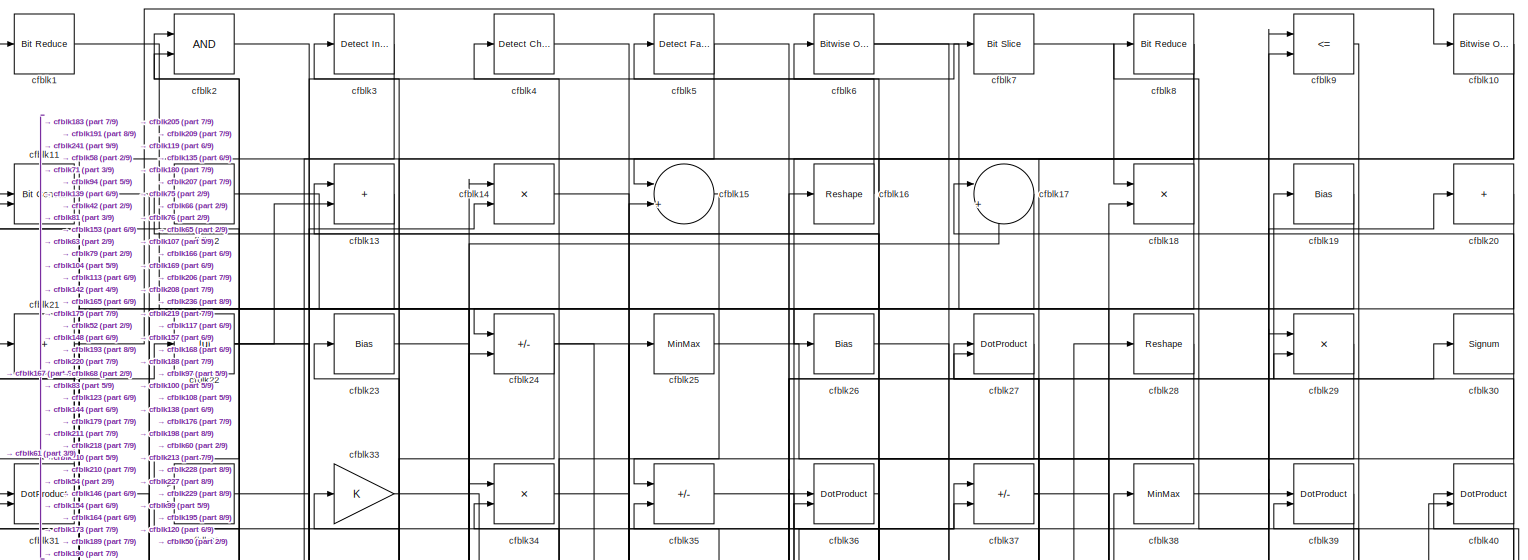
[diagram: root canvas - part 1/9, full width, top band]
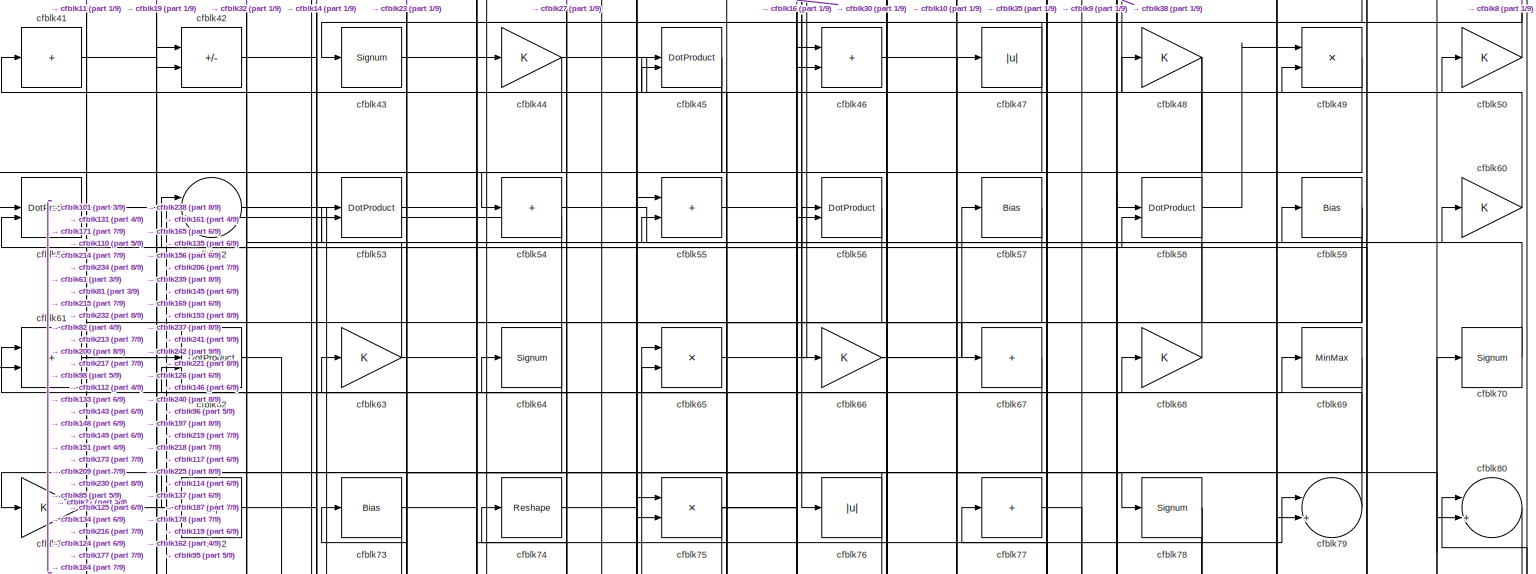
[diagram: root canvas - part 2/9, full width, top band]
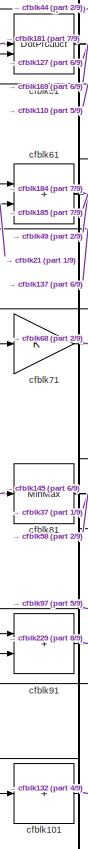
[diagram: root canvas - part 3/9, top left region]
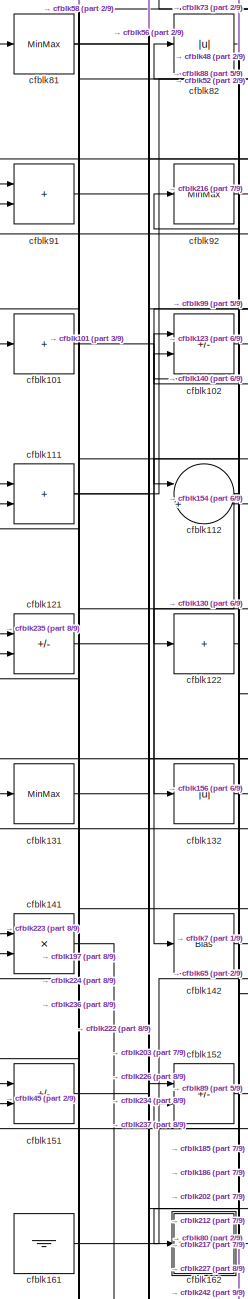
[diagram: root canvas - part 4/9, middle left region]
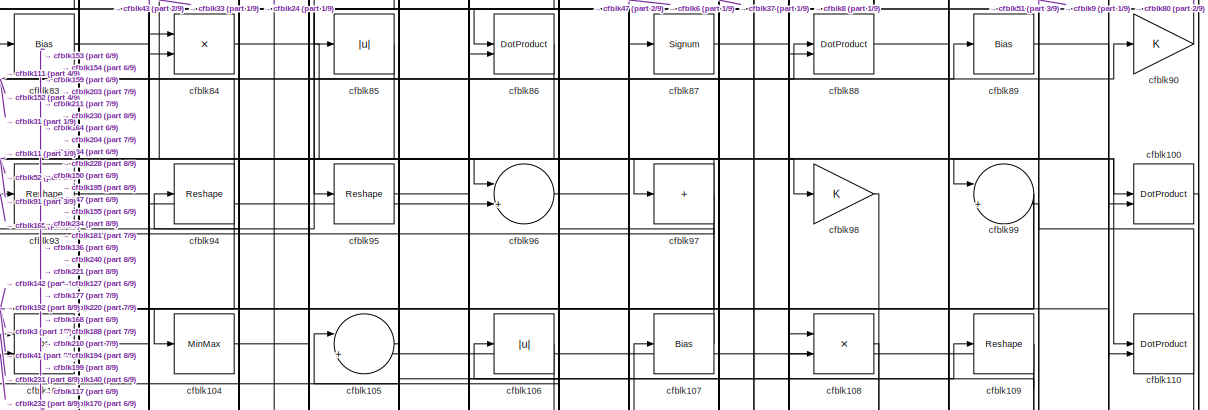
[diagram: root canvas - part 5/9, full width, middle band]
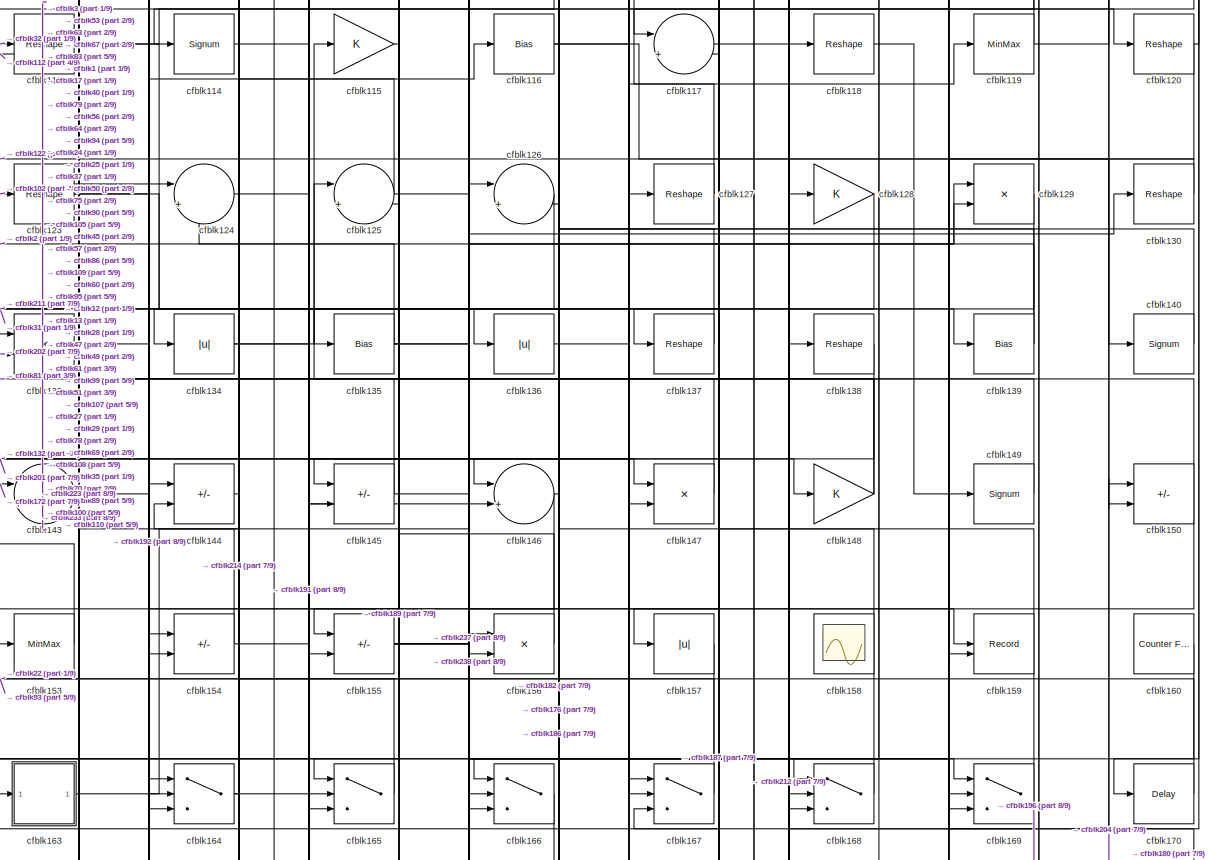
[diagram: root canvas - part 6/9, full width, middle band]
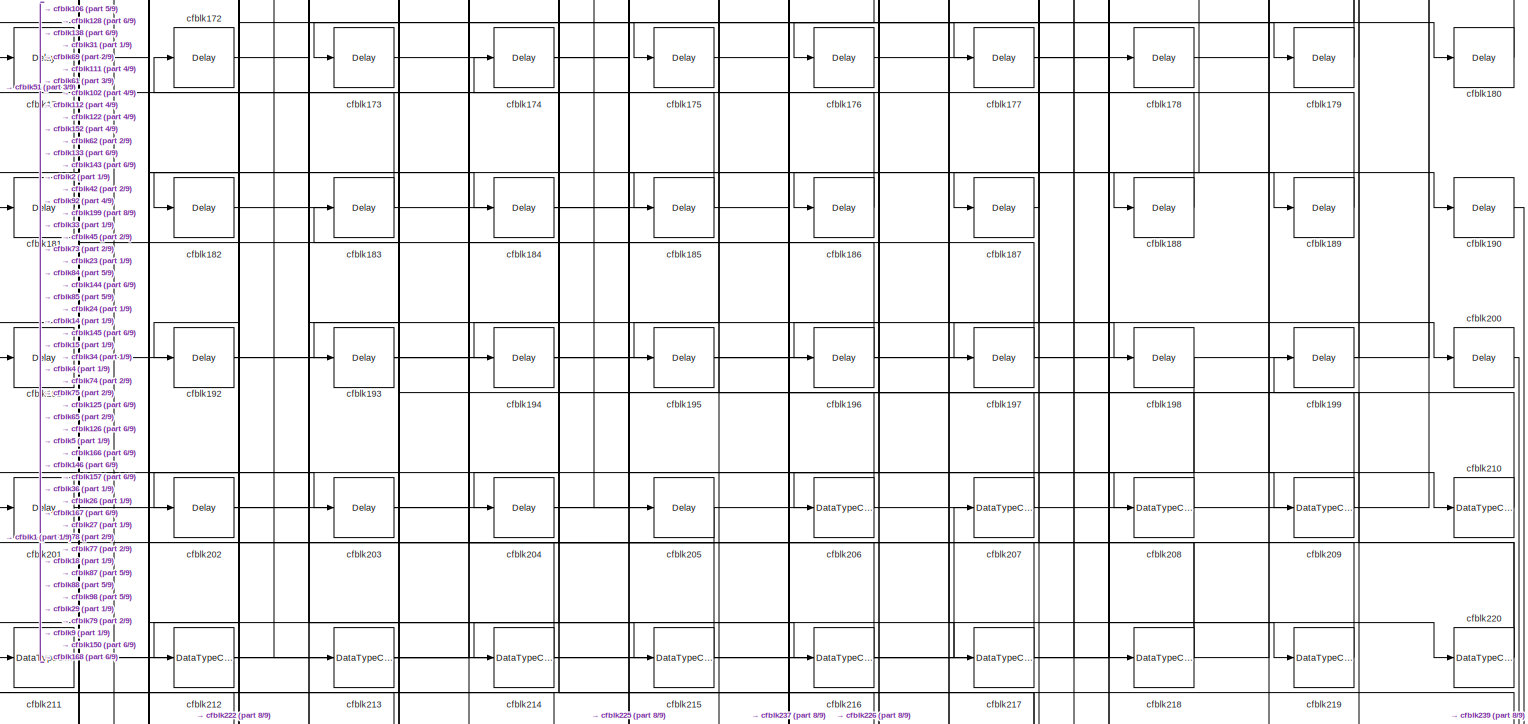
[diagram: root canvas - part 7/9, full width, bottom band]
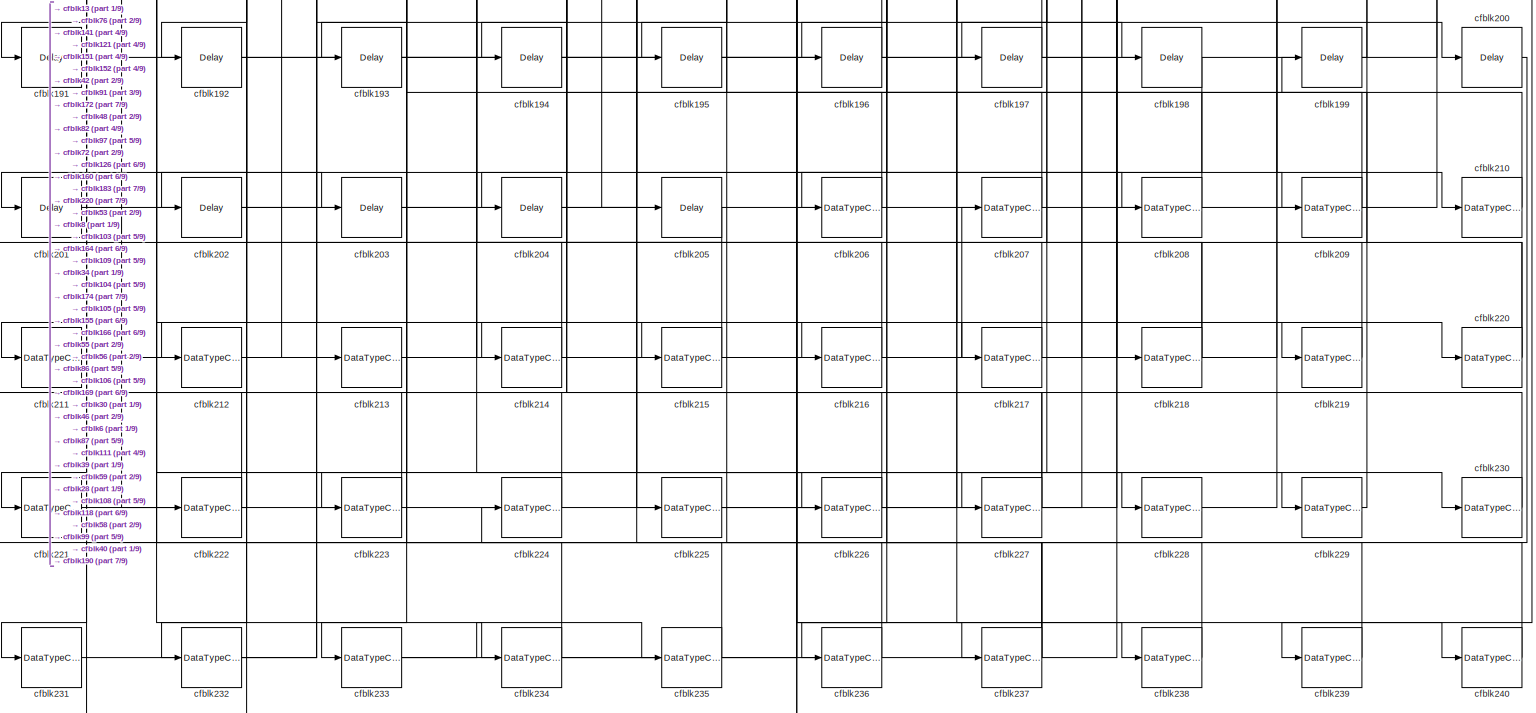
[diagram: root canvas - part 8/9, full width, bottom band]
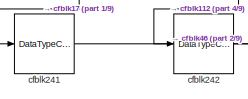
[diagram: root canvas - part 9/9, bottom left region]
MODEL slx_e442b698175f
KIND model
CONFIG AbsTol = auto
CONFIG EnableMultiTasking = off
CONFIG FixedStep = auto
CONFIG MaxStep = auto
CONFIG MinStep = auto
CONFIG RelTol = 1e-3
CONFIG SampleTimeConstraint = Unconstrained
CONFIG SolverName = VariableStepAuto
CONFIG StartTime = 0.0
CONFIG StopTime = 10.0
BLOCK [Reference] cfblk1  REF=hdlsllib/Logic and Bit
Operations/Bit Reduce
  SourceBlock = hdlsllib/Logic and Bit\nOperations/Bit Reduce
  SourceType = Bit Reduce
BLOCK [Reference] cfblk10  REF=simulink/Logic and Bit
Operations/Bitwise
Operator
  LibrarySourceBlock = hdlsllib/Logic and Bit\nOperations/Bitwise\nOperator
  SourceBlock = simulink/Logic and Bit\nOperations/Bitwise\nOperator
  SourceType = Bitwise Operator
BLOCK [DotProduct] cfblk100
  OutDataTypeStr = Inherit: Inherit via internal rule
BLOCK [Sum] cfblk101
  IconShape = rectangular
  Inputs = +
BLOCK [Sum] cfblk102
  IconShape = rectangular
  Inputs = +-
BLOCK [Product] cfblk103
  Inputs = */
  RndMeth = Zero
  SaturateOnIntegerOverflow = on
BLOCK [MinMax] cfblk104
BLOCK [Sum] cfblk105
  Inputs = |++
BLOCK [Abs] cfblk106
  SaturateOnIntegerOverflow = off
BLOCK [Bias] cfblk107
  Bias = 0.0
  SaturateOnIntegerOverflow = off
BLOCK [Product] cfblk108
  Inputs = */
  RndMeth = Zero
  SaturateOnIntegerOverflow = on
BLOCK [Reshape] cfblk109
BLOCK [Reference] cfblk11  REF=hdlsllib/Logic and Bit
Operations/Bit Concat
  SourceBlock = hdlsllib/Logic and Bit\nOperations/Bit Concat
  SourceType = Bit Concat
BLOCK [DotProduct] cfblk110
  OutDataTypeStr = Inherit: Inherit via internal rule
BLOCK [Sum] cfblk111
  IconShape = rectangular
BLOCK [Sum] cfblk112
  Inputs = |++
BLOCK [Reshape] cfblk113
BLOCK [Signum] cfblk114
BLOCK [Gain] cfblk115
BLOCK [Bias] cfblk116
  Bias = 0.0
  SaturateOnIntegerOverflow = off
BLOCK [Sum] cfblk117
  Inputs = |++
BLOCK [Reshape] cfblk118
BLOCK [MinMax] cfblk119
BLOCK [Sum] cfblk12
  IconShape = rectangular
  Inputs = +
BLOCK [Reshape] cfblk120
BLOCK [Sum] cfblk121
  IconShape = rectangular
  Inputs = +-
BLOCK [Sum] cfblk122
  IconShape = rectangular
  Inputs = +
BLOCK [Reshape] cfblk123
BLOCK [Sum] cfblk124
  Inputs = |++
BLOCK [Sum] cfblk125
  Inputs = |++
BLOCK [Sum] cfblk126
  Inputs = |++
BLOCK [Reshape] cfblk127
BLOCK [Gain] cfblk128
BLOCK [Product] cfblk129
  Inputs = */
  RndMeth = Zero
  SaturateOnIntegerOverflow = on
BLOCK [Sum] cfblk13
  IconShape = rectangular
BLOCK [Reshape] cfblk130
BLOCK [MinMax] cfblk131
BLOCK [Abs] cfblk132
  SaturateOnIntegerOverflow = off
BLOCK [Product] cfblk133
  Inputs = */
  RndMeth = Zero
  SaturateOnIntegerOverflow = on
BLOCK [Abs] cfblk134
  SaturateOnIntegerOverflow = off
BLOCK [Bias] cfblk135
  Bias = 0.0
  SaturateOnIntegerOverflow = off
BLOCK [Abs] cfblk136
  SaturateOnIntegerOverflow = off
BLOCK [Reshape] cfblk137
BLOCK [Reshape] cfblk138
BLOCK [Bias] cfblk139
  Bias = 0.0
  SaturateOnIntegerOverflow = off
BLOCK [Product] cfblk14
  Inputs = */
  RndMeth = Zero
  SaturateOnIntegerOverflow = on
BLOCK [Signum] cfblk140
BLOCK [Product] cfblk141
  Inputs = */
  RndMeth = Zero
  SaturateOnIntegerOverflow = on
BLOCK [Bias] cfblk142
  Bias = 0.0
  SaturateOnIntegerOverflow = off
BLOCK [Sum] cfblk143
  Inputs = |++
BLOCK [Sum] cfblk144
  IconShape = rectangular
  Inputs = +-
BLOCK [Sum] cfblk145
  IconShape = rectangular
  Inputs = +-
BLOCK [Sum] cfblk146
  Inputs = |++
BLOCK [Product] cfblk147
  Inputs = */
  RndMeth = Zero
  SaturateOnIntegerOverflow = on
BLOCK [Gain] cfblk148
BLOCK [Signum] cfblk149
BLOCK [Sum] cfblk15
  Inputs = |++
BLOCK [Sum] cfblk150
  IconShape = rectangular
  Inputs = +-
BLOCK [Sum] cfblk151
  IconShape = rectangular
  Inputs = +-
BLOCK [Sum] cfblk152
  IconShape = rectangular
  Inputs = +-
BLOCK [MinMax] cfblk153
BLOCK [Sum] cfblk154
  IconShape = rectangular
  Inputs = +-
BLOCK [Sum] cfblk155
  IconShape = rectangular
  Inputs = +-
BLOCK [Product] cfblk156
  Inputs = */
  RndMeth = Zero
  SaturateOnIntegerOverflow = on
BLOCK [Abs] cfblk157
  SaturateOnIntegerOverflow = off
BLOCK [Scope] cfblk158
  Floating = on
  NumInputPorts = 1
  ScopeSpecificationString = Simulink.scopes.TimeScopeBlockCfg('CurrentConfiguration', extmgr.ConfigurationSet(extmgr.Configuration('Core','General UI',true,'FigureColor',[0.156862745098039 0.156862745098039 0.156862745098039]),extmgr.Configuration('Core','Source UI',true),extmgr.Configuration('Sources','WiredSimulink',true,'DataLoggingVariableName','ScopeData1','DataLoggingSaveFormat','StructureWithTime','DataLoggingLimitDat...<+2713ch>
BLOCK [Record] cfblk159
  CompatibilityTag = XY
  FileSettingsInternal = {"entries":[{"content":{"excelSettings":{"content":{},"type":"Streamout.ExcelSettings"}},"type":"Streamout.FileSettingStorage","uuid":""}],"packageUris":["http:\/\/schema.mathworks.com\/mf0\/streamout_blocks\/R2020a"],"version":"1.0"}
  Layout = [1 1]
  SignalsInternal = {"entries":[{"content":{"signals":[{"content":{"blockPath":[],"dimensions":[1],"domain":"","lineColor":"#a2142f","plots":[1],"port":1,"signalID":864,"signalName":"XY Graph:1"},"type":"RecordBlkView.Signal","uuid":""},{"content":{"blockPath":[],"dimensions":[1],"domain":"","lineColor":"#139fff","plots":[1],"port":2,"signalID":867,"signalName":"XY Graph:2"},"type":"RecordBlkView.Signal","uuid":""}]}...<+144ch>
  VisualizationBindings = {"xyplotplugin":{"info":[{"series":[{"bindingParametersList":[{"parameter":"X-Axis","signalID":864,"signalName":"XY Graph:1"},{"parameter":"Y-Axis","signalID":867,"signalName":"XY Graph:2"}],"seriesID":36667}],"subplotID":1}]}}
  st = -1
BLOCK [Reshape] cfblk16
BLOCK [Reference] cfblk160  REF=hdlsllib/Sources/Counter
Free-Running
  SourceBlock = hdlsllib/Sources/Counter\nFree-Running
  SourceType = Counter Free-Running
BLOCK [Ground] cfblk161
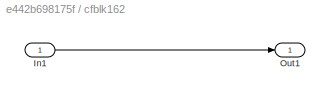
BLOCK [SubSystem] cfblk162
  LibrarySourceBlock = hdlsllib/Ports &\nSubsystems/Subsystem
BLOCK [Inport] cfblk162/In1
BLOCK [Outport] cfblk162/Out1
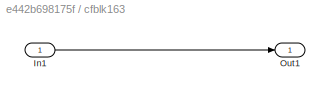
BLOCK [SubSystem] cfblk163
  LibrarySourceBlock = hdlsllib/Ports &\nSubsystems/Subsystem
BLOCK [Inport] cfblk163/In1
BLOCK [Outport] cfblk163/Out1
BLOCK [Switch] cfblk164
  InputSameDT = off
  SaturateOnIntegerOverflow = off
BLOCK [Switch] cfblk165
  InputSameDT = off
  SaturateOnIntegerOverflow = off
BLOCK [Switch] cfblk166
  InputSameDT = off
  SaturateOnIntegerOverflow = off
BLOCK [Switch] cfblk167
  InputSameDT = off
  SaturateOnIntegerOverflow = off
BLOCK [Switch] cfblk168
  InputSameDT = off
  SaturateOnIntegerOverflow = off
BLOCK [Switch] cfblk169
  InputSameDT = off
  SaturateOnIntegerOverflow = off
BLOCK [Sum] cfblk17
  Inputs = |++
BLOCK [Delay] cfblk170
  InputPortMap = u0
  SampleTime = 1
BLOCK [Delay] cfblk171
  InputPortMap = u0
  SampleTime = 1
BLOCK [Delay] cfblk172
  InputPortMap = u0
  SampleTime = 1
BLOCK [Delay] cfblk173
  InputPortMap = u0
  SampleTime = 1
BLOCK [Delay] cfblk174
  InputPortMap = u0
  SampleTime = 1
BLOCK [Delay] cfblk175
  InputPortMap = u0
  SampleTime = 1
BLOCK [Delay] cfblk176
  InputPortMap = u0
  SampleTime = 1
BLOCK [Delay] cfblk177
  InputPortMap = u0
  SampleTime = 1
BLOCK [Delay] cfblk178
  InputPortMap = u0
  SampleTime = 1
BLOCK [Delay] cfblk179
  InputPortMap = u0
  SampleTime = 1
BLOCK [Product] cfblk18
  Inputs = */
  RndMeth = Zero
  SaturateOnIntegerOverflow = on
BLOCK [Delay] cfblk180
  InputPortMap = u0
  SampleTime = 1
BLOCK [Delay] cfblk181
  InputPortMap = u0
  SampleTime = 1
BLOCK [Delay] cfblk182
  InputPortMap = u0
  SampleTime = 1
BLOCK [Delay] cfblk183
  InputPortMap = u0
  SampleTime = 1
BLOCK [Delay] cfblk184
  InputPortMap = u0
  SampleTime = 1
BLOCK [Delay] cfblk185
  InputPortMap = u0
  SampleTime = 1
BLOCK [Delay] cfblk186
  InputPortMap = u0
  SampleTime = 1
BLOCK [Delay] cfblk187
  InputPortMap = u0
  SampleTime = 1
BLOCK [Delay] cfblk188
  InputPortMap = u0
  SampleTime = 1
BLOCK [Delay] cfblk189
  InputPortMap = u0
  SampleTime = 1
BLOCK [Bias] cfblk19
  Bias = 0.0
  SaturateOnIntegerOverflow = off
BLOCK [Delay] cfblk190
  InputPortMap = u0
  SampleTime = 1
BLOCK [Delay] cfblk191
  InputPortMap = u0
  SampleTime = 1
BLOCK [Delay] cfblk192
  InputPortMap = u0
  SampleTime = 1
BLOCK [Delay] cfblk193
  InputPortMap = u0
  SampleTime = 1
BLOCK [Delay] cfblk194
  InputPortMap = u0
  SampleTime = 1
BLOCK [Delay] cfblk195
  InputPortMap = u0
  SampleTime = 1
BLOCK [Delay] cfblk196
  InputPortMap = u0
  SampleTime = 1
BLOCK [Delay] cfblk197
  InputPortMap = u0
  SampleTime = 1
BLOCK [Delay] cfblk198
  InputPortMap = u0
  SampleTime = 1
BLOCK [Delay] cfblk199
  InputPortMap = u0
  SampleTime = 1
BLOCK [Logic] cfblk2
  AllPortsSameDT = off
  OutDataTypeStr = boolean
BLOCK [Sum] cfblk20
  IconShape = rectangular
  Inputs = +
BLOCK [Delay] cfblk200
  InputPortMap = u0
  SampleTime = 1
BLOCK [Delay] cfblk201
  InputPortMap = u0
  SampleTime = 1
BLOCK [Delay] cfblk202
  InputPortMap = u0
  SampleTime = 1
BLOCK [Delay] cfblk203
  InputPortMap = u0
  SampleTime = 1
BLOCK [Delay] cfblk204
  InputPortMap = u0
  SampleTime = 1
BLOCK [Delay] cfblk205
  InputPortMap = u0
  SampleTime = 1
BLOCK [DataTypeConversion] cfblk206
  OutDataTypeStr = uint8
  RndMeth = Floor
  SaturateOnIntegerOverflow = off
BLOCK [DataTypeConversion] cfblk207
  OutDataTypeStr = uint8
  RndMeth = Floor
  SaturateOnIntegerOverflow = off
BLOCK [DataTypeConversion] cfblk208
  OutDataTypeStr = uint8
  RndMeth = Floor
  SaturateOnIntegerOverflow = off
BLOCK [DataTypeConversion] cfblk209
  OutDataTypeStr = uint8
  RndMeth = Floor
  SaturateOnIntegerOverflow = off
BLOCK [Sum] cfblk21
  IconShape = rectangular
  Inputs = +
BLOCK [DataTypeConversion] cfblk210
  OutDataTypeStr = uint8
  RndMeth = Floor
  SaturateOnIntegerOverflow = off
BLOCK [DataTypeConversion] cfblk211
  RndMeth = Floor
  SaturateOnIntegerOverflow = off
BLOCK [DataTypeConversion] cfblk212
  OutDataTypeStr = uint8
  RndMeth = Floor
  SaturateOnIntegerOverflow = off
BLOCK [DataTypeConversion] cfblk213
  RndMeth = Floor
  SaturateOnIntegerOverflow = off
BLOCK [DataTypeConversion] cfblk214
  OutDataTypeStr = uint8
  RndMeth = Floor
  SaturateOnIntegerOverflow = off
BLOCK [DataTypeConversion] cfblk215
  OutDataTypeStr = uint8
  RndMeth = Floor
  SaturateOnIntegerOverflow = off
BLOCK [DataTypeConversion] cfblk216
  RndMeth = Floor
  SaturateOnIntegerOverflow = off
BLOCK [DataTypeConversion] cfblk217
  OutDataTypeStr = uint8
  RndMeth = Floor
  SaturateOnIntegerOverflow = off
BLOCK [DataTypeConversion] cfblk218
  RndMeth = Floor
  SaturateOnIntegerOverflow = off
BLOCK [DataTypeConversion] cfblk219
  OutDataTypeStr = uint8
  RndMeth = Floor
  SaturateOnIntegerOverflow = off
BLOCK [Abs] cfblk22
  SaturateOnIntegerOverflow = off
BLOCK [DataTypeConversion] cfblk220
  RndMeth = Floor
  SaturateOnIntegerOverflow = off
BLOCK [DataTypeConversion] cfblk221
  OutDataTypeStr = uint8
  RndMeth = Floor
  SaturateOnIntegerOverflow = off
BLOCK [DataTypeConversion] cfblk222
  RndMeth = Floor
  SaturateOnIntegerOverflow = off
BLOCK [DataTypeConversion] cfblk223
  OutDataTypeStr = uint8
  RndMeth = Floor
  SaturateOnIntegerOverflow = off
BLOCK [DataTypeConversion] cfblk224
  OutDataTypeStr = uint8
  RndMeth = Floor
  SaturateOnIntegerOverflow = off
BLOCK [DataTypeConversion] cfblk225
  OutDataTypeStr = uint8
  RndMeth = Floor
  SaturateOnIntegerOverflow = off
BLOCK [DataTypeConversion] cfblk226
  OutDataTypeStr = uint8
  RndMeth = Floor
  SaturateOnIntegerOverflow = off
BLOCK [DataTypeConversion] cfblk227
  RndMeth = Floor
  SaturateOnIntegerOverflow = off
BLOCK [DataTypeConversion] cfblk228
  OutDataTypeStr = uint8
  RndMeth = Floor
  SaturateOnIntegerOverflow = off
BLOCK [DataTypeConversion] cfblk229
  OutDataTypeStr = uint8
  RndMeth = Floor
  SaturateOnIntegerOverflow = off
BLOCK [Bias] cfblk23
  Bias = 0.0
  SaturateOnIntegerOverflow = off
BLOCK [DataTypeConversion] cfblk230
  OutDataTypeStr = uint8
  RndMeth = Floor
  SaturateOnIntegerOverflow = off
BLOCK [DataTypeConversion] cfblk231
  OutDataTypeStr = uint8
  RndMeth = Floor
  SaturateOnIntegerOverflow = off
BLOCK [DataTypeConversion] cfblk232
  OutDataTypeStr = uint8
  RndMeth = Floor
  SaturateOnIntegerOverflow = off
BLOCK [DataTypeConversion] cfblk233
  RndMeth = Floor
  SaturateOnIntegerOverflow = off
BLOCK [DataTypeConversion] cfblk234
  RndMeth = Floor
  SaturateOnIntegerOverflow = off
BLOCK [DataTypeConversion] cfblk235
  OutDataTypeStr = uint8
  RndMeth = Floor
  SaturateOnIntegerOverflow = off
BLOCK [DataTypeConversion] cfblk236
  OutDataTypeStr = uint8
  RndMeth = Floor
  SaturateOnIntegerOverflow = off
BLOCK [DataTypeConversion] cfblk237
  RndMeth = Floor
  SaturateOnIntegerOverflow = off
BLOCK [DataTypeConversion] cfblk238
  OutDataTypeStr = uint8
  RndMeth = Floor
  SaturateOnIntegerOverflow = off
BLOCK [DataTypeConversion] cfblk239
  OutDataTypeStr = uint8
  RndMeth = Floor
  SaturateOnIntegerOverflow = off
BLOCK [Sum] cfblk24
  IconShape = rectangular
  Inputs = +-
BLOCK [DataTypeConversion] cfblk240
  OutDataTypeStr = uint8
  RndMeth = Floor
  SaturateOnIntegerOverflow = off
BLOCK [DataTypeConversion] cfblk241
  OutDataTypeStr = uint8
  RndMeth = Floor
  SaturateOnIntegerOverflow = off
BLOCK [DataTypeConversion] cfblk242
  OutDataTypeStr = uint8
  RndMeth = Floor
  SaturateOnIntegerOverflow = off
BLOCK [MinMax] cfblk25
BLOCK [Bias] cfblk26
  Bias = 0.0
  SaturateOnIntegerOverflow = off
BLOCK [DotProduct] cfblk27
  OutDataTypeStr = Inherit: Inherit via internal rule
BLOCK [Reshape] cfblk28
BLOCK [Product] cfblk29
  Inputs = */
  RndMeth = Zero
  SaturateOnIntegerOverflow = on
BLOCK [Reference] cfblk3  REF=simulink/Logic and Bit
Operations/Detect
Increase
  LibrarySourceBlock = hdlsllib/Logic and Bit\nOperations/Detect\nIncrease
  SourceBlock = simulink/Logic and Bit\nOperations/Detect\nIncrease
  SourceType = Detect Increase
BLOCK [Signum] cfblk30
BLOCK [DotProduct] cfblk31
  OutDataTypeStr = Inherit: Inherit via internal rule
BLOCK [Sum] cfblk32
  IconShape = rectangular
BLOCK [Gain] cfblk33
BLOCK [Product] cfblk34
  Inputs = */
  RndMeth = Zero
  SaturateOnIntegerOverflow = on
BLOCK [Sum] cfblk35
  IconShape = rectangular
  Inputs = +-
BLOCK [DotProduct] cfblk36
  OutDataTypeStr = Inherit: Inherit via internal rule
BLOCK [Sum] cfblk37
  IconShape = rectangular
  Inputs = +-
BLOCK [MinMax] cfblk38
BLOCK [DotProduct] cfblk39
  OutDataTypeStr = Inherit: Inherit via internal rule
BLOCK [Reference] cfblk4  REF=simulink/Logic and Bit
Operations/Detect
Change
  LibrarySourceBlock = hdlsllib/Logic and Bit\nOperations/Detect\nChange
  SourceBlock = simulink/Logic and Bit\nOperations/Detect\nChange
  SourceType = Detect Change
BLOCK [DotProduct] cfblk40
  OutDataTypeStr = Inherit: Inherit via internal rule
BLOCK [Sum] cfblk41
  IconShape = rectangular
  Inputs = +
BLOCK [Sum] cfblk42
  IconShape = rectangular
  Inputs = +-
BLOCK [Signum] cfblk43
BLOCK [Gain] cfblk44
BLOCK [DotProduct] cfblk45
  OutDataTypeStr = Inherit: Inherit via internal rule
BLOCK [Sum] cfblk46
  IconShape = rectangular
BLOCK [Abs] cfblk47
  SaturateOnIntegerOverflow = off
BLOCK [Gain] cfblk48
BLOCK [Product] cfblk49
  Inputs = */
  RndMeth = Zero
  SaturateOnIntegerOverflow = on
BLOCK [Reference] cfblk5  REF=hdlsllib/Logic and Bit
Operations/Detect Fall
Nonpositive
  SourceBlock = hdlsllib/Logic and Bit\nOperations/Detect Fall\nNonpositive
  SourceType = Detect Fall Nonpositive
BLOCK [Gain] cfblk50
BLOCK [DotProduct] cfblk51
  OutDataTypeStr = Inherit: Inherit via internal rule
BLOCK [Sum] cfblk52
  Inputs = |++
BLOCK [DotProduct] cfblk53
  OutDataTypeStr = Inherit: Inherit via internal rule
BLOCK [Sum] cfblk54
  IconShape = rectangular
  Inputs = +
BLOCK [Sum] cfblk55
  IconShape = rectangular
BLOCK [DotProduct] cfblk56
  OutDataTypeStr = Inherit: Inherit via internal rule
BLOCK [Bias] cfblk57
  Bias = 0.0
  SaturateOnIntegerOverflow = off
BLOCK [DotProduct] cfblk58
  OutDataTypeStr = Inherit: Inherit via internal rule
BLOCK [Bias] cfblk59
  Bias = 0.0
  SaturateOnIntegerOverflow = off
BLOCK [Reference] cfblk6  REF=simulink/Logic and Bit
Operations/Bitwise
Operator
  LibrarySourceBlock = hdlsllib/Logic and Bit\nOperations/Bitwise\nOperator
  SourceBlock = simulink/Logic and Bit\nOperations/Bitwise\nOperator
  SourceType = Bitwise Operator
BLOCK [Gain] cfblk60
BLOCK [Sum] cfblk61
  IconShape = rectangular
BLOCK [DotProduct] cfblk62
  OutDataTypeStr = Inherit: Inherit via internal rule
BLOCK [Gain] cfblk63
BLOCK [Signum] cfblk64
BLOCK [Product] cfblk65
  Inputs = */
  RndMeth = Zero
  SaturateOnIntegerOverflow = on
BLOCK [Gain] cfblk66
BLOCK [Sum] cfblk67
  IconShape = rectangular
  Inputs = +
BLOCK [Gain] cfblk68
BLOCK [MinMax] cfblk69
BLOCK [Reference] cfblk7  REF=hdlsllib/Logic and Bit
Operations/Bit Slice
  SourceBlock = hdlsllib/Logic and Bit\nOperations/Bit Slice
  SourceType = Bit Slice
BLOCK [Signum] cfblk70
BLOCK [Gain] cfblk71
BLOCK [Abs] cfblk72
  SaturateOnIntegerOverflow = off
BLOCK [Bias] cfblk73
  Bias = 0.0
  SaturateOnIntegerOverflow = off
BLOCK [Reshape] cfblk74
BLOCK [Product] cfblk75
  Inputs = */
  RndMeth = Zero
  SaturateOnIntegerOverflow = on
BLOCK [Abs] cfblk76
  SaturateOnIntegerOverflow = off
BLOCK [Sum] cfblk77
  IconShape = rectangular
  Inputs = +
BLOCK [Signum] cfblk78
BLOCK [Sum] cfblk79
  Inputs = |++
BLOCK [Reference] cfblk8  REF=hdlsllib/Logic and Bit
Operations/Bit Reduce
  SourceBlock = hdlsllib/Logic and Bit\nOperations/Bit Reduce
  SourceType = Bit Reduce
BLOCK [Sum] cfblk80
  Inputs = |++
BLOCK [MinMax] cfblk81
BLOCK [Abs] cfblk82
  SaturateOnIntegerOverflow = off
BLOCK [Bias] cfblk83
  Bias = 0.0
  SaturateOnIntegerOverflow = off
BLOCK [Product] cfblk84
  Inputs = */
  RndMeth = Zero
  SaturateOnIntegerOverflow = on
BLOCK [Abs] cfblk85
  SaturateOnIntegerOverflow = off
BLOCK [DotProduct] cfblk86
  OutDataTypeStr = Inherit: Inherit via internal rule
BLOCK [Signum] cfblk87
BLOCK [DotProduct] cfblk88
  OutDataTypeStr = Inherit: Inherit via internal rule
BLOCK [Bias] cfblk89
  Bias = 0.0
  SaturateOnIntegerOverflow = off
BLOCK [RelationalOperator] cfblk9
  InputSameDT = off
  Operator = <=
  OutDataTypeStr = boolean
BLOCK [Gain] cfblk90
BLOCK [Sum] cfblk91
  IconShape = rectangular
BLOCK [MinMax] cfblk92
BLOCK [Reshape] cfblk93
BLOCK [Reshape] cfblk94
BLOCK [Reshape] cfblk95
BLOCK [Sum] cfblk96
  Inputs = |++
BLOCK [Sum] cfblk97
  IconShape = rectangular
  Inputs = +
BLOCK [Gain] cfblk98
BLOCK [Sum] cfblk99
  Inputs = |++
LINE cfblk100:1 -> cfblk170:1
LINE cfblk101:1 -> cfblk132:1
LINE cfblk102:1 -> cfblk123:1
LINE cfblk103:1 -> cfblk230:1
LINE cfblk104:1 -> cfblk228:1
LINE cfblk105:1 -> cfblk195:1
LINE cfblk106:1 -> cfblk181:1
LINE cfblk107:1 -> cfblk6:1
LINE cfblk108:1 -> cfblk168:1
NET cfblk109:1 -> cfblk105:2, cfblk194:1
NET cfblk10:1 -> cfblk26:1, cfblk76:1
NET cfblk110:1 -> cfblk117:1, cfblk51:2
NET cfblk111:1 -> cfblk203:1, cfblk88:1
NET cfblk112:1 -> cfblk151:1, cfblk202:1, cfblk242:1
NET cfblk113:1 -> cfblk120:1, cfblk166:3
LINE cfblk114:1 -> cfblk147:2
LINE cfblk115:1 -> cfblk135:1
NET cfblk116:1 -> cfblk150:2, cfblk168:3
LINE cfblk117:1 -> cfblk69:1
LINE cfblk118:1 -> cfblk149:1
NET cfblk119:1 -> cfblk35:2, cfblk70:1
LINE cfblk11:1 -> cfblk100:2
NET cfblk120:1 -> cfblk159:2, cfblk40:1
LINE cfblk121:1 -> cfblk234:1
LINE cfblk122:1 -> cfblk212:1
NET cfblk123:1 -> cfblk124:1, cfblk167:1, cfblk17:2
LINE cfblk124:1 -> cfblk50:1
NET cfblk125:1 -> cfblk167:2, cfblk64:1
LINE cfblk126:1 -> cfblk223:1
LINE cfblk127:1 -> cfblk107:1
LINE cfblk128:1 -> cfblk211:1
LINE cfblk129:1 -> cfblk165:1
LINE cfblk12:1 -> cfblk154:1
LINE cfblk130:1 -> cfblk122:1
LINE cfblk131:1 -> cfblk56:1
LINE cfblk132:1 -> cfblk156:1
LINE cfblk133:1 -> cfblk79:1
NET cfblk134:1 -> cfblk125:1, cfblk90:1
NET cfblk135:1 -> cfblk129:1, cfblk29:2, cfblk2:1, cfblk45:2
LINE cfblk136:1 -> cfblk119:1
LINE cfblk137:1 -> cfblk61:1
LINE cfblk138:1 -> cfblk201:1
NET cfblk139:1 -> cfblk124:2, cfblk12:1
LINE cfblk13:1 -> cfblk191:1
LINE cfblk140:1 -> cfblk102:1
LINE cfblk141:1 -> cfblk222:1
LINE cfblk142:1 -> cfblk7:1
LINE cfblk143:1 -> cfblk116:1
LINE cfblk144:1 -> cfblk214:1
NET cfblk145:1 -> cfblk60:1, cfblk81:1
NET cfblk146:1 -> cfblk156:2, cfblk186:1
LINE cfblk147:1 -> cfblk115:1
NET cfblk148:1 -> cfblk3:1, cfblk63:1
LINE cfblk149:1 -> cfblk53:1
LINE cfblk14:1 -> cfblk189:1
NET cfblk150:1 -> cfblk105:1, cfblk163:1
LINE cfblk151:1 -> cfblk226:1
LINE cfblk152:1 -> cfblk89:1
LINE cfblk153:1 -> cfblk2:2
NET cfblk154:1 -> cfblk112:2, cfblk25:1
NET cfblk155:1 -> cfblk109:1, cfblk129:2, cfblk169:2, cfblk238:1
LINE cfblk156:1 -> cfblk45:1
LINE cfblk157:1 -> cfblk176:1
LINE cfblk15:1 -> cfblk35:1
LINE cfblk160:1 -> cfblk233:1
LINE cfblk161:1 -> cfblk65:1
LINE cfblk162/In1:1 -> cfblk162/Out1:1
LINE cfblk162:1 -> cfblk80:1
LINE cfblk163/In1:1 -> cfblk163/Out1:1
LINE cfblk163:1 -> cfblk130:1
NET cfblk164:1 -> cfblk37:2, cfblk94:1
LINE cfblk165:1 -> cfblk93:1
LINE cfblk166:1 -> cfblk182:1
LINE cfblk167:1 -> cfblk22:1
LINE cfblk168:1 -> cfblk27:1
NET cfblk169:1 -> cfblk13:1, cfblk196:1
LINE cfblk16:1 -> cfblk5:1
LINE cfblk170:1 -> cfblk144:2
LINE cfblk171:1 -> cfblk215:1
LINE cfblk172:1 -> cfblk143:1
LINE cfblk173:1 -> cfblk15:2
LINE cfblk174:1 -> cfblk225:1
LINE cfblk175:1 -> cfblk208:1
LINE cfblk176:1 -> cfblk18:2
LINE cfblk177:1 -> cfblk88:2
LINE cfblk178:1 -> cfblk79:2
LINE cfblk179:1 -> cfblk9:1
LINE cfblk17:1 -> cfblk241:1
LINE cfblk180:1 -> cfblk168:2
LINE cfblk181:1 -> cfblk51:1
LINE cfblk182:1 -> cfblk126:1
LINE cfblk183:1 -> cfblk31:2
LINE cfblk184:1 -> cfblk75:1
LINE cfblk185:1 -> cfblk152:2
LINE cfblk186:1 -> cfblk102:2
LINE cfblk187:1 -> cfblk167:3
LINE cfblk188:1 -> cfblk27:2
LINE cfblk189:1 -> cfblk125:2
NET cfblk18:1 -> cfblk15:1, cfblk24:1
LINE cfblk190:1 -> cfblk239:1
LINE cfblk191:1 -> cfblk155:2
LINE cfblk192:1 -> cfblk164:1
LINE cfblk193:1 -> cfblk56:2
LINE cfblk194:1 -> cfblk108:1
LINE cfblk195:1 -> cfblk40:2
LINE cfblk196:1 -> cfblk164:2
LINE cfblk197:1 -> cfblk111:2
LINE cfblk198:1 -> cfblk231:1
LINE cfblk199:1 -> cfblk99:2
LINE cfblk19:1 -> cfblk42:2
LINE cfblk1:1 -> cfblk144:1
LINE cfblk200:1 -> cfblk224:1
LINE cfblk201:1 -> cfblk145:2
LINE cfblk202:1 -> cfblk133:2
LINE cfblk203:1 -> cfblk84:2
LINE cfblk204:1 -> cfblk150:1
LINE cfblk205:1 -> cfblk1:1
LINE cfblk206:1 -> cfblk65:2
LINE cfblk207:1 -> cfblk36:1
LINE cfblk208:1 -> cfblk36:2
LINE cfblk209:1 -> cfblk73:1
LINE cfblk20:1 -> cfblk32:1
LINE cfblk210:1 -> cfblk4:1
NET cfblk211:1 -> cfblk24:2, cfblk84:1
LINE cfblk212:1 -> cfblk128:1
NET cfblk213:1 -> cfblk207:1, cfblk29:1
LINE cfblk214:1 -> cfblk62:1
LINE cfblk215:1 -> cfblk62:2
NET cfblk216:1 -> cfblk178:1, cfblk74:1
LINE cfblk217:1 -> cfblk92:1
NET cfblk218:1 -> cfblk14:1, cfblk34:1
LINE cfblk219:1 -> cfblk77:1
NET cfblk21:1 -> cfblk10:1, cfblk61:2
NET cfblk220:1 -> cfblk199:1, cfblk33:1
LINE cfblk221:1 -> cfblk87:1
NET cfblk222:1 -> cfblk111:1, cfblk172:1
LINE cfblk223:1 -> cfblk141:1
LINE cfblk224:1 -> cfblk141:2
LINE cfblk225:1 -> cfblk58:1
LINE cfblk226:1 -> cfblk174:1
NET cfblk227:1 -> cfblk28:1, cfblk34:2, cfblk82:1
LINE cfblk228:1 -> cfblk39:1
LINE cfblk229:1 -> cfblk39:2
NET cfblk22:1 -> cfblk13:2, cfblk148:1, cfblk165:3
LINE cfblk230:1 -> cfblk53:2
LINE cfblk231:1 -> cfblk103:1
LINE cfblk232:1 -> cfblk103:2
NET cfblk233:1 -> cfblk118:1, cfblk235:1
NET cfblk234:1 -> cfblk42:1, cfblk86:2
LINE cfblk235:1 -> cfblk121:1
LINE cfblk236:1 -> cfblk121:2
NET cfblk237:1 -> cfblk152:1, cfblk166:2, cfblk183:1
LINE cfblk238:1 -> cfblk55:1
LINE cfblk239:1 -> cfblk55:2
LINE cfblk23:1 -> cfblk179:1
LINE cfblk240:1 -> cfblk106:1
LINE cfblk241:1 -> cfblk46:1
LINE cfblk242:1 -> cfblk46:2
NET cfblk24:1 -> cfblk146:2, cfblk205:1, cfblk83:1
LINE cfblk25:1 -> cfblk138:1
LINE cfblk26:1 -> cfblk219:1
LINE cfblk27:1 -> cfblk54:1
LINE cfblk28:1 -> cfblk166:1
LINE cfblk29:1 -> cfblk157:1
LINE cfblk2:1 -> cfblk175:1
NET cfblk30:1 -> cfblk17:1, cfblk236:1
NET cfblk31:1 -> cfblk139:1, cfblk21:1
LINE cfblk32:1 -> cfblk113:1
LINE cfblk33:1 -> cfblk110:1
LINE cfblk34:1 -> cfblk190:1
LINE cfblk35:1 -> cfblk66:1
LINE cfblk36:1 -> cfblk206:1
NET cfblk37:1 -> cfblk100:1, cfblk117:2
LINE cfblk38:1 -> cfblk20:1
LINE cfblk39:1 -> cfblk227:1
LINE cfblk3:1 -> cfblk104:1
NET cfblk40:1 -> cfblk164:3, cfblk19:1
LINE cfblk41:1 -> cfblk110:2
LINE cfblk42:1 -> cfblk217:1
LINE cfblk43:1 -> cfblk85:1
NET cfblk44:1 -> cfblk101:1, cfblk48:1
NET cfblk45:1 -> cfblk151:2, cfblk173:1
LINE cfblk46:1 -> cfblk240:1
NET cfblk47:1 -> cfblk126:2, cfblk43:1
NET cfblk48:1 -> cfblk162:1, cfblk232:1
LINE cfblk49:1 -> cfblk146:1
LINE cfblk4:1 -> cfblk209:1
LINE cfblk50:1 -> cfblk8:1
NET cfblk51:1 -> cfblk127:1, cfblk169:1
NET cfblk52:1 -> cfblk14:2, cfblk98:1
LINE cfblk53:1 -> cfblk67:1
LINE cfblk54:1 -> cfblk59:1
LINE cfblk55:1 -> cfblk237:1
LINE cfblk56:1 -> cfblk134:1
LINE cfblk57:1 -> cfblk145:1
NET cfblk58:1 -> cfblk11:2, cfblk131:1, cfblk49:1
NET cfblk59:1 -> cfblk197:1, cfblk75:2
NET cfblk5:1 -> cfblk180:1, cfblk71:1
LINE cfblk60:1 -> cfblk38:1
NET cfblk61:1 -> cfblk184:1, cfblk185:1, cfblk49:2
LINE cfblk62:1 -> cfblk213:1
NET cfblk63:1 -> cfblk11:1, cfblk78:1
NET cfblk64:1 -> cfblk143:2, cfblk52:2
LINE cfblk65:1 -> cfblk9:2
NET cfblk66:1 -> cfblk57:1, cfblk80:2
LINE cfblk67:1 -> cfblk133:1
LINE cfblk68:1 -> cfblk23:1
LINE cfblk69:1 -> cfblk171:1
NET cfblk6:1 -> cfblk108:2, cfblk198:1
LINE cfblk70:1 -> cfblk41:1
LINE cfblk71:1 -> cfblk68:1
LINE cfblk72:1 -> cfblk200:1
NET cfblk73:1 -> cfblk112:1, cfblk44:1
LINE cfblk74:1 -> cfblk177:1
NET cfblk75:1 -> cfblk165:2, cfblk169:3, cfblk16:1, cfblk30:1
NET cfblk76:1 -> cfblk221:1, cfblk72:1
LINE cfblk77:1 -> cfblk218:1
NET cfblk78:1 -> cfblk114:1, cfblk137:1, cfblk187:1
LINE cfblk79:1 -> cfblk32:2
LINE cfblk7:1 -> cfblk18:1
LINE cfblk80:1 -> cfblk95:1
NET cfblk81:1 -> cfblk37:1, cfblk58:2
LINE cfblk82:1 -> cfblk52:1
NET cfblk83:1 -> cfblk153:1, cfblk96:2
LINE cfblk84:1 -> cfblk96:1
LINE cfblk85:1 -> cfblk204:1
LINE cfblk86:1 -> cfblk155:1
LINE cfblk87:1 -> cfblk220:1
LINE cfblk88:1 -> cfblk210:1
LINE cfblk89:1 -> cfblk140:1
NET cfblk8:1 -> cfblk193:1, cfblk97:1
LINE cfblk90:1 -> cfblk86:1
LINE cfblk91:1 -> cfblk229:1
LINE cfblk92:1 -> cfblk216:1
LINE cfblk93:1 -> cfblk159:1
NET cfblk94:1 -> cfblk154:2, cfblk31:1
LINE cfblk95:1 -> cfblk147:1
LINE cfblk96:1 -> cfblk47:1
NET cfblk97:1 -> cfblk192:1, cfblk91:1, cfblk91:2
LINE cfblk98:1 -> cfblk188:1
NET cfblk99:1 -> cfblk136:1, cfblk142:1
LINE cfblk9:1 -> cfblk99:1
note: NET lines group one-source signal fan-out (src -> all destinations, sorted); 1:1 wires keep LINE
